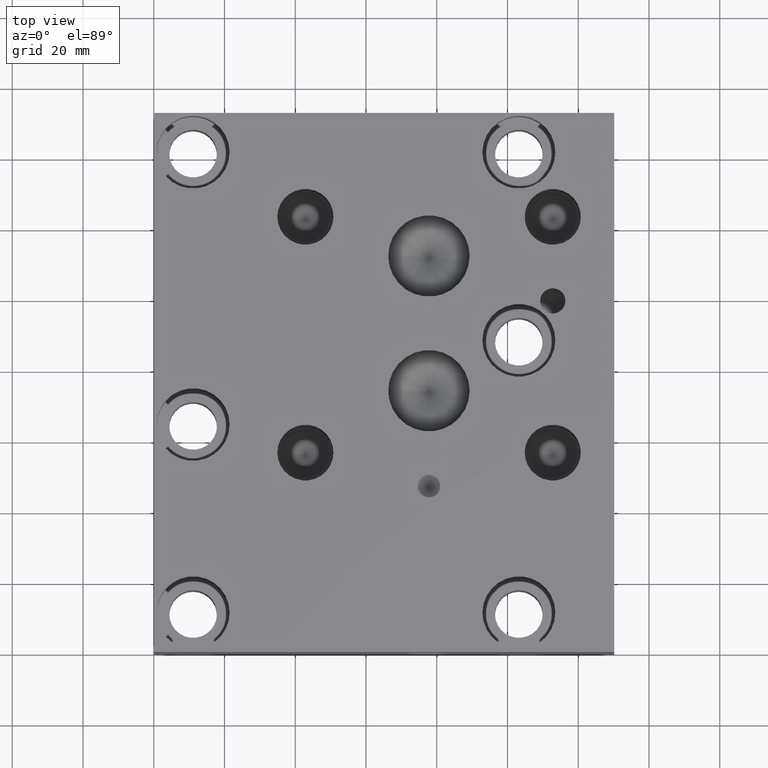
[diagram: clean part render]
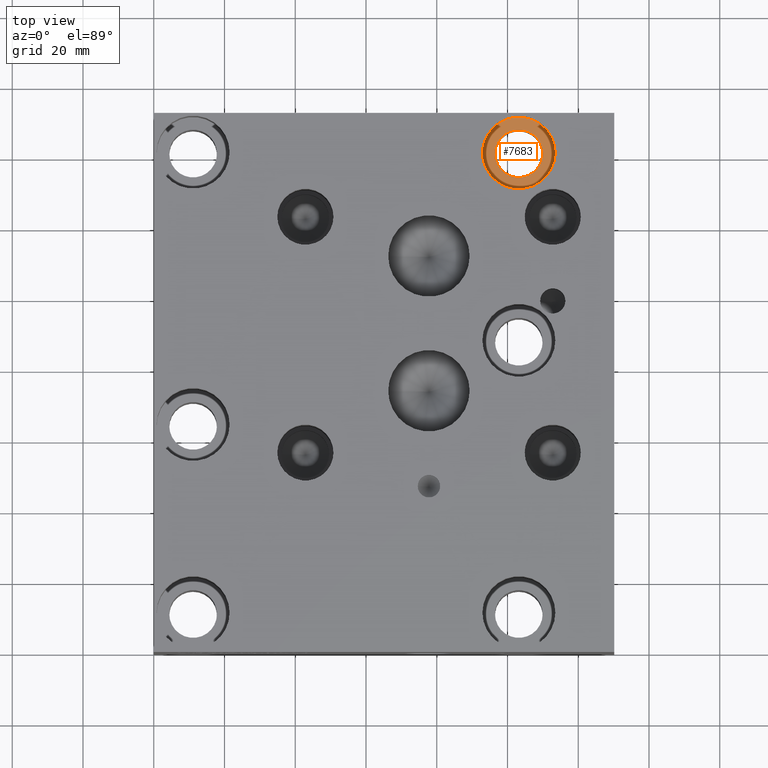
[diagram: same view with one face highlighted and labeled with its STEP entity id]
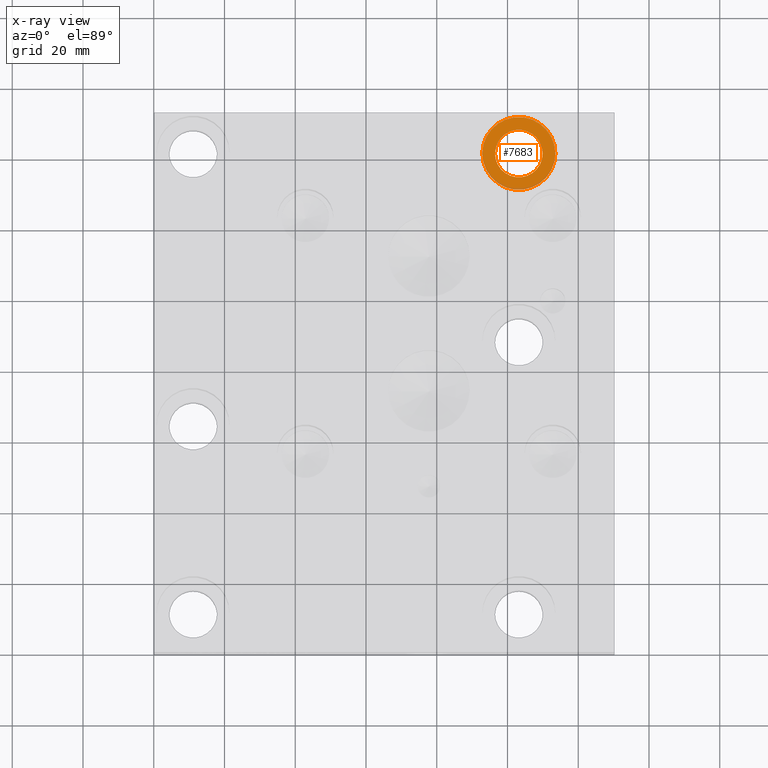
[diagram: x-ray of the same camera — body ghosted, the highlighted face saturated]
A machine part, top view. The second image highlights one B-rep face of the part: STEP entity #7683.
The next image is the same camera in x-ray: the body ghosted, the highlighted face saturated — about 4% of this face is hidden behind the body in this view.
In plain terms, the highlighted planar face has unit normal (0, 0, 1).
Its self-contained STEP definition (entity closure, byte-faithful):
#150=CIRCLE('',#8091,10.3124);
#151=CIRCLE('',#8092,6.7437);
#501=FACE_BOUND('',#1364,.T.);
#896=FACE_OUTER_BOUND('',#1363,.T.);
#1363=EDGE_LOOP('',(#6621));
#1364=EDGE_LOOP('',(#6622));
#3600=VERTEX_POINT('',#13000);
#3601=VERTEX_POINT('',#13002);
#4620=EDGE_CURVE('',#3600,#3600,#150,.T.);
#4621=EDGE_CURVE('',#3601,#3601,#151,.T.);
#6621=ORIENTED_EDGE('',*,*,#4620,.T.);
#6622=ORIENTED_EDGE('',*,*,#4621,.F.);
#6992=PLANE('',#8090);
#7683=ADVANCED_FACE('',(#896,#501),#6992,.T.);
#8090=AXIS2_PLACEMENT_3D('',#12999,#9603,#9604);
#8091=AXIS2_PLACEMENT_3D('',#13001,#9605,#9606);
#8092=AXIS2_PLACEMENT_3D('',#13003,#9607,#9608);
#9603=DIRECTION('center_axis',(0.,0.,1.));
#9604=DIRECTION('ref_axis',(1.,0.,0.));
#9605=DIRECTION('center_axis',(0.,0.,1.));
#9606=DIRECTION('ref_axis',(1.,0.,0.));
#9607=DIRECTION('center_axis',(0.,0.,1.));
#9608=DIRECTION('ref_axis',(1.,0.,0.));
#12999=CARTESIAN_POINT('Origin',(103.2002,141.3002,28.448));
#13000=CARTESIAN_POINT('',(92.8878,141.3002,28.448));
#13001=CARTESIAN_POINT('Origin',(103.2002,141.3002,28.448));
#13002=CARTESIAN_POINT('',(96.4565,141.3002,28.448));
#13003=CARTESIAN_POINT('Origin',(103.2002,141.3002,28.448));